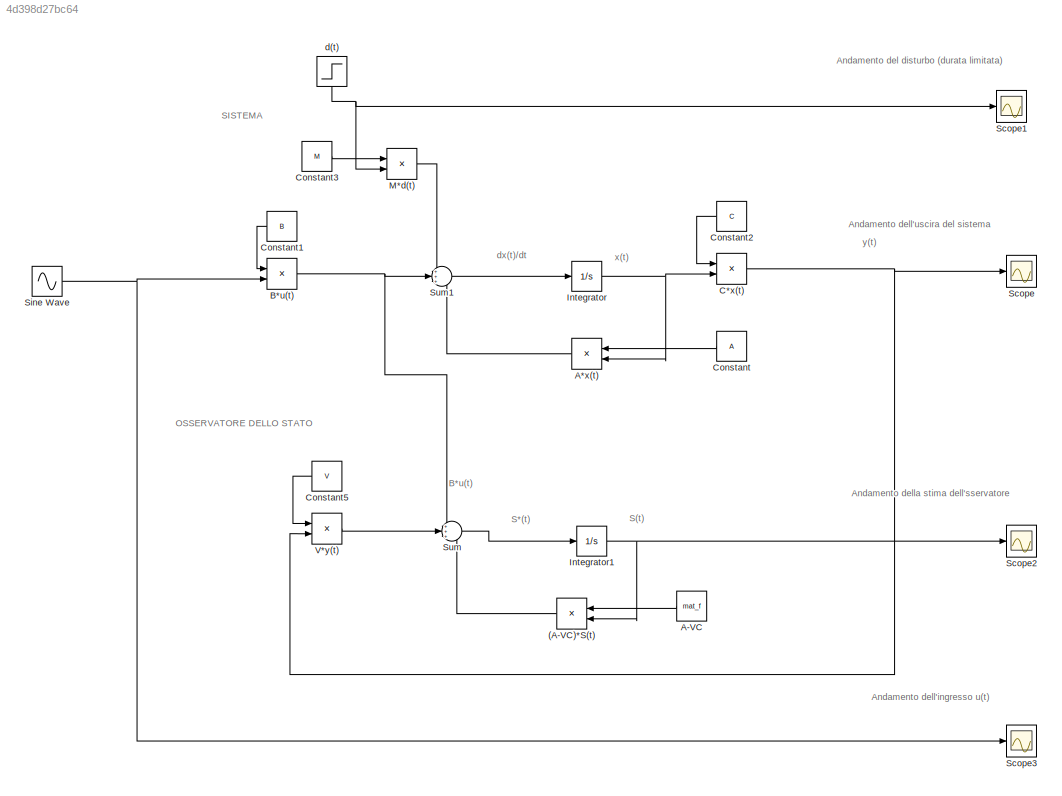
MODEL slx_4d398d27bc64
KIND model
CONFIG AbsTol = auto
CONFIG EnableMultiTasking = off
CONFIG FixedStep = auto
CONFIG MaxStep = auto
CONFIG MinStep = auto
CONFIG RelTol = 1e-3
CONFIG SampleTimeConstraint = Unconstrained
CONFIG Solver = VariableStepAuto
CONFIG SolverName = VariableStepAuto
CONFIG StartTime = 0.0
CONFIG StopTime = 50
BLOCK [Product] (A-VC)*S(t)
  InputSameDT = off
  Multiplication = Matrix(*)
  OutDataTypeStr = Inherit: Inherit via internal rule
  Ports = [2, 1]
  RndMeth = Floor
  SaturateOnIntegerOverflow = off
BLOCK [Product] A*x(t)
  InputSameDT = off
  Multiplication = Matrix(*)
  OutDataTypeStr = Inherit: Inherit via internal rule
  Ports = [2, 1]
  RndMeth = Floor
  SaturateOnIntegerOverflow = off
BLOCK [Constant] A-VC
  SampleTime = 0
  Value = mat_f
  VectorParams1D = off
BLOCK [Product] B*u(t)
  InputSameDT = off
  Multiplication = Matrix(*)
  OutDataTypeStr = Inherit: Inherit via internal rule
  Ports = [2, 1]
  RndMeth = Floor
  SaturateOnIntegerOverflow = off
BLOCK [Product] C*x(t)
  InputSameDT = off
  Multiplication = Matrix(*)
  OutDataTypeStr = Inherit: Inherit via internal rule
  Ports = [2, 1]
  RndMeth = Floor
  SaturateOnIntegerOverflow = off
BLOCK [Constant] Constant
  SampleTime = 0
  Value = A
  VectorParams1D = off
BLOCK [Constant] Constant1
  SampleTime = 0
  Value = B
  VectorParams1D = off
BLOCK [Constant] Constant2
  SampleTime = 0
  Value = C
  VectorParams1D = off
BLOCK [Constant] Constant3
  SampleTime = 0
  Value = M
  VectorParams1D = off
BLOCK [Constant] Constant5
  SampleTime = 0
  Value = V
  VectorParams1D = off
BLOCK [Integrator] Integrator
  Ports = [1, 1]
BLOCK [Integrator] Integrator1
  Ports = [1, 1]
BLOCK [Product] M*d(t)
  InputSameDT = off
  Multiplication = Matrix(*)
  OutDataTypeStr = Inherit: Inherit via internal rule
  Ports = [2, 1]
  RndMeth = Floor
  SaturateOnIntegerOverflow = off
BLOCK [Scope] Scope
  Floating = off
  NumInputPorts = 1
  Ports = [1]
  ScopeSpecificationString = Simulink.scopes.TimeScopeBlockCfg('CurrentConfiguration', extmgr.ConfigurationSet(extmgr.Configuration('Core','General UI',true),extmgr.Configuration('Core','Source UI',true),extmgr.Configuration('Sources','WiredSimulink',true),extmgr.Configuration('Visuals','Time Domain',true,'SerializedDisplays',{struct('MinYLimReal','-148.31556','MaxYLimReal','1334.84007','YLabelReal','','MinYLimMag',' 0.00000'...<+1395ch>
BLOCK [Scope] Scope1
  Floating = off
  NumInputPorts = 1
  Ports = [1]
  ScopeSpecificationString = Simulink.scopes.TimeScopeBlockCfg('CurrentConfiguration', extmgr.ConfigurationSet(extmgr.Configuration('Core','General UI',true),extmgr.Configuration('Core','Source UI',true),extmgr.Configuration('Sources','WiredSimulink',true,'DataLoggingVariableName','ScopeData1'),extmgr.Configuration('Visuals','Time Domain',true,'SerializedDisplays',{struct('MinYLimReal','-0.625','MaxYLimReal','5.625','YLabelRe...<+1351ch>
BLOCK [Scope] Scope2
  Floating = off
  NumInputPorts = 1
  Ports = [1]
  ScopeSpecificationString = Simulink.scopes.TimeScopeBlockCfg('CurrentConfiguration', extmgr.ConfigurationSet(extmgr.Configuration('Core','General UI',true),extmgr.Configuration('Core','Source UI',true),extmgr.Configuration('Sources','WiredSimulink',true,'DataLoggingVariableName','ScopeData2'),extmgr.Configuration('Visuals','Time Domain',true,'SerializedDisplays',{struct('MinYLimReal','-190.89685','MaxYLimReal','1370.97397',...<+1508ch>
BLOCK [Scope] Scope3
  Floating = off
  NumInputPorts = 1
  Ports = [1]
  ScopeSpecificationString = Simulink.scopes.TimeScopeBlockCfg('CurrentConfiguration', extmgr.ConfigurationSet(extmgr.Configuration('Core','General UI',true),extmgr.Configuration('Core','Source UI',true),extmgr.Configuration('Sources','WiredSimulink',true,'DataLoggingVariableName','ScopeData1'),extmgr.Configuration('Visuals','Time Domain',true,'SerializedDisplays',{struct('MinYLimReal','-6.24945','MaxYLimReal','6.2496','YLabe...<+1364ch>
BLOCK [Sin] Sine Wave
  Amplitude = 5
  Frequency = 2
  Ports = [0, 1]
  SampleTime = 0
BLOCK [Sum] Sum
  IconShape = round
  InputSameDT = off
  Inputs = +++
  OutDataTypeStr = Inherit: Inherit via internal rule
  Ports = [3, 1]
  SaturateOnIntegerOverflow = off
BLOCK [Sum] Sum1
  IconShape = round
  InputSameDT = off
  Inputs = +++
  OutDataTypeStr = Inherit: Inherit via internal rule
  Ports = [3, 1]
  SaturateOnIntegerOverflow = off
BLOCK [Product] V*y(t)
  InputSameDT = off
  Multiplication = Matrix(*)
  OutDataTypeStr = Inherit: Inherit via internal rule
  Ports = [2, 1]
  RndMeth = Floor
  SaturateOnIntegerOverflow = off
BLOCK [Step] d(t)
  After = 0
  Before = 5
  SampleTime = 0
  Time = 10
  VectorParams1D = off
ANNOTATION (root): Andamento dell'ingresso u(t)
ANNOTATION (root): Andamento del disturbo (durata limitata)
ANNOTATION (root): Andamento dell'uscira del sistema
ANNOTATION (root): Andamento della stima dell'sservatore
ANNOTATION (root): B*u(t)
ANNOTATION (root): S(t)
ANNOTATION (root): S*(t)
ANNOTATION (root): dx(t)/dt
ANNOTATION (root): x(t)
ANNOTATION (root): y(t)
ANNOTATION (root): OSSERVATORE DELLO STATO
ANNOTATION (root): SISTEMA
LINE (A-VC)*S(t):1 -> Sum:3
LINE A*x(t):1 -> Sum1:3
LINE A-VC:1 -> (A-VC)*S(t):1
NET B*u(t):1 -> Sum1:2, Sum:1
NET C*x(t):1 -> Scope:1, V*y(t):2
LINE Constant1:1 -> B*u(t):1
LINE Constant2:1 -> C*x(t):1
LINE Constant3:1 -> M*d(t):1
LINE Constant5:1 -> V*y(t):1
LINE Constant:1 -> A*x(t):1
NET Integrator1:1 -> (A-VC)*S(t):2, Scope2:1
NET Integrator:1 -> A*x(t):2, C*x(t):2
LINE M*d(t):1 -> Sum1:1
NET Sine Wave:1 -> B*u(t):2, Scope3:1
LINE Sum1:1 -> Integrator:1
LINE Sum:1 -> Integrator1:1
LINE V*y(t):1 -> Sum:2
NET d(t):1 -> M*d(t):2, Scope1:1
note: NET lines group one-source signal fan-out (src -> all destinations, sorted); 1:1 wires keep LINE
